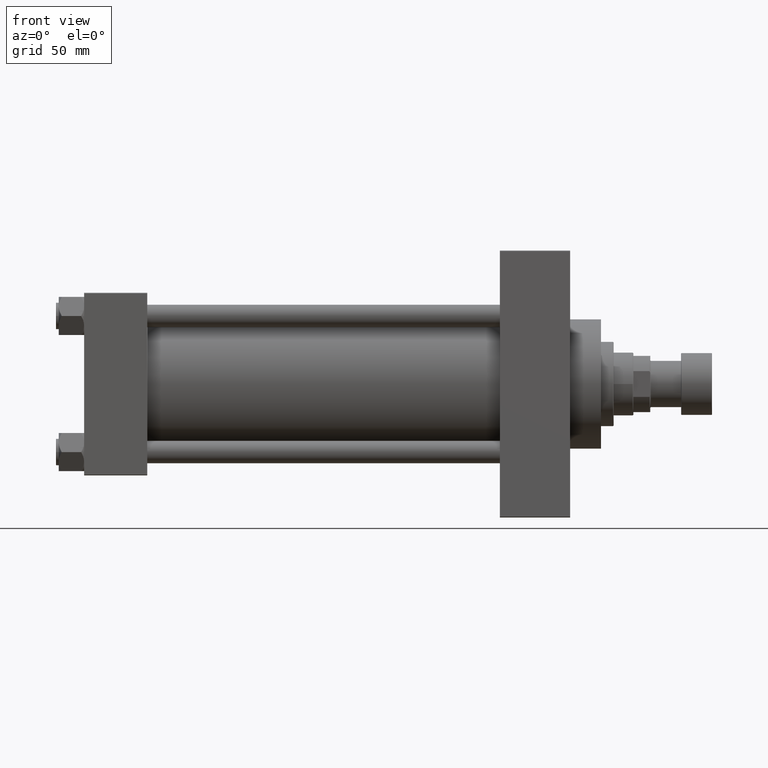
[diagram: clean part render]
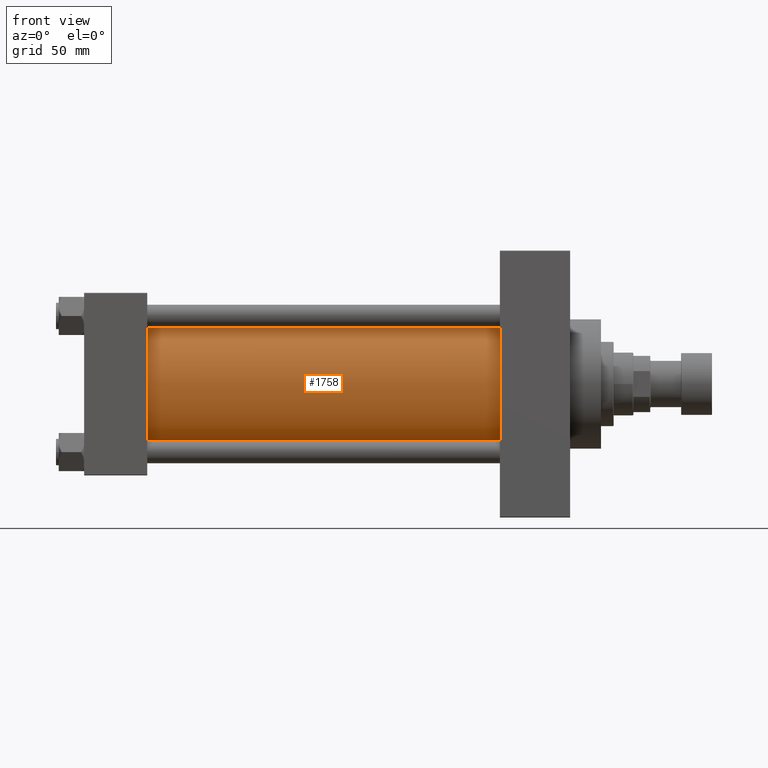
[diagram: same view with one face highlighted and labeled with its STEP entity id]
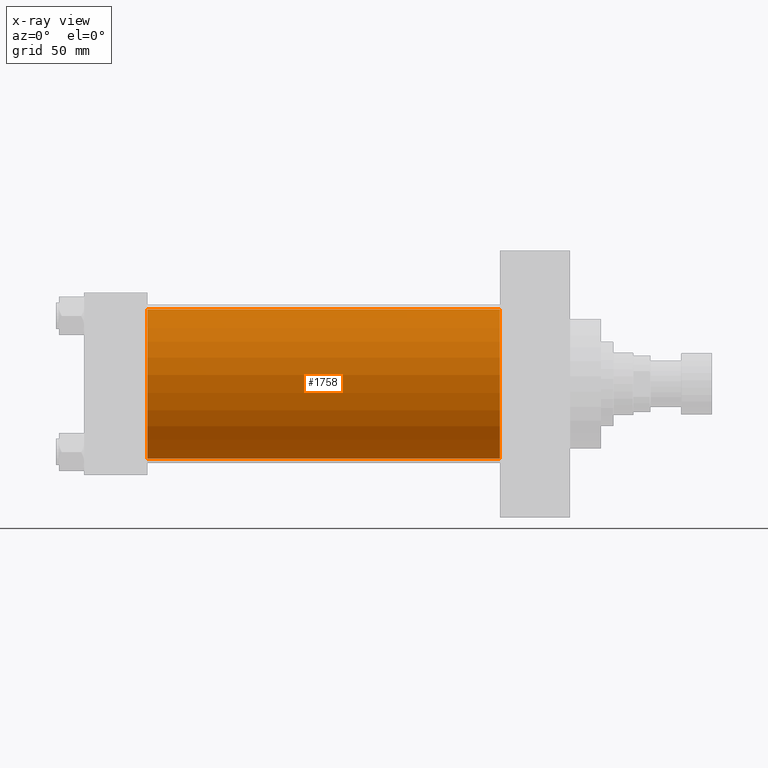
[diagram: x-ray of the same camera — body ghosted, the highlighted face saturated]
A machine part, front view. The second image highlights one B-rep face of the part: STEP entity #1758.
The next image is the same camera in x-ray: the body ghosted, the highlighted face saturated — about 0% of this face is hidden behind the body in this view.
In plain terms, the highlighted cylindrical surface (partial cylindrical patch) has radius 53 mm, axis along (-1, -0, -0).
Its self-contained STEP definition (entity closure, byte-faithful):
#206 = FACE_OUTER_BOUND ( 'NONE', #5410, .T. ) ;
#1681 = VECTOR ( 'NONE', #32270, 1000.000000000000000 ) ;
#1758 = ADVANCED_FACE ( 'NONE', ( #206 ), #25263, .T. ) ;
#3383 = DIRECTION ( 'NONE',  ( -1.000000000000000000, -0.000000000000000000, -0.000000000000000000 ) ) ;
#5116 = VERTEX_POINT ( 'NONE', #18636 ) ;
#5179 = VERTEX_POINT ( 'NONE', #40768 ) ;
#5410 = EDGE_LOOP ( 'NONE', ( #26254, #19471, #22207, #9543 ) ) ;
#6391 = DIRECTION ( 'NONE',  ( 0.000000000000000000, 0.000000000000000000, -1.000000000000000000 ) ) ;
#6745 = EDGE_CURVE ( 'NONE', #33483, #23123, #14206, .T. ) ;
#9543 = ORIENTED_EDGE ( 'NONE', *, *, #6745, .T. ) ;
#10288 = CARTESIAN_POINT ( 'NONE',  ( 296.0000000000000000, -2.602085213965210642E-15, 0.000000000000000000 ) ) ;
#13178 = CARTESIAN_POINT ( 'NONE',  ( 44.99999999999998579, -2.602085213965210642E-15, 0.000000000000000000 ) ) ;
#14206 = CIRCLE ( 'NONE', #34361, 53.00000000000000711 ) ;
#18529 = EDGE_CURVE ( 'NONE', #5179, #5116, #37642, .T. ) ;
#18636 = CARTESIAN_POINT ( 'NONE',  ( 296.0000000000000000, 3.888542821515762466E-15, -53.00000000000000711 ) ) ;
#19471 = ORIENTED_EDGE ( 'NONE', *, *, #18529, .F. ) ;
#20705 = CARTESIAN_POINT ( 'NONE',  ( 296.0000000000000000, 3.888542821515762466E-15, -53.00000000000000711 ) ) ;
#21679 = DIRECTION ( 'NONE',  ( 1.000000000000000000, 0.000000000000000000, 0.000000000000000000 ) ) ;
#22207 = ORIENTED_EDGE ( 'NONE', *, *, #40094, .T. ) ;
#23123 = VERTEX_POINT ( 'NONE', #46030 ) ;
#24732 = CARTESIAN_POINT ( 'NONE',  ( 296.0000000000000000, -2.602085213965210642E-15, 53.00000000000000711 ) ) ;
#24978 = LINE ( 'NONE', #24732, #1681 ) ;
#25263 = CYLINDRICAL_SURFACE ( 'NONE', #38080, 53.00000000000000711 ) ;
#26222 = DIRECTION ( 'NONE',  ( 0.000000000000000000, 0.000000000000000000, 1.000000000000000000 ) ) ;
#26254 = ORIENTED_EDGE ( 'NONE', *, *, #32874, .F. ) ;
#28006 = LINE ( 'NONE', #20705, #40340 ) ;
#29857 = CARTESIAN_POINT ( 'NONE',  ( 296.0000000000000000, -2.602085213965210642E-15, 0.000000000000000000 ) ) ;
#32270 = DIRECTION ( 'NONE',  ( -1.000000000000000000, -0.000000000000000000, -0.000000000000000000 ) ) ;
#32874 = EDGE_CURVE ( 'NONE', #5116, #23123, #28006, .T. ) ;
#33483 = VERTEX_POINT ( 'NONE', #47545 ) ;
#34361 = AXIS2_PLACEMENT_3D ( 'NONE', #13178, #46956, #35040 ) ;
#35040 = DIRECTION ( 'NONE',  ( 0.000000000000000000, 0.000000000000000000, 1.000000000000000000 ) ) ;
#37642 = CIRCLE ( 'NONE', #43108, 53.00000000000000711 ) ;
#38080 = AXIS2_PLACEMENT_3D ( 'NONE', #29857, #3383, #26222 ) ;
#40094 = EDGE_CURVE ( 'NONE', #5179, #33483, #24978, .T. ) ;
#40340 = VECTOR ( 'NONE', #42839, 1000.000000000000000 ) ;
#40768 = CARTESIAN_POINT ( 'NONE',  ( 296.0000000000000000, -2.602085213965210642E-15, 53.00000000000000711 ) ) ;
#42839 = DIRECTION ( 'NONE',  ( -1.000000000000000000, -0.000000000000000000, -0.000000000000000000 ) ) ;
#43108 = AXIS2_PLACEMENT_3D ( 'NONE', #10288, #21679, #6391 ) ;
#46030 = CARTESIAN_POINT ( 'NONE',  ( 44.99999999999998579, 3.888542821515762466E-15, -53.00000000000000711 ) ) ;
#46956 = DIRECTION ( 'NONE',  ( 1.000000000000000000, -0.000000000000000000, 0.000000000000000000 ) ) ;
#47545 = CARTESIAN_POINT ( 'NONE',  ( 44.99999999999998579, -2.602085213965210642E-15, 53.00000000000000711 ) ) ;